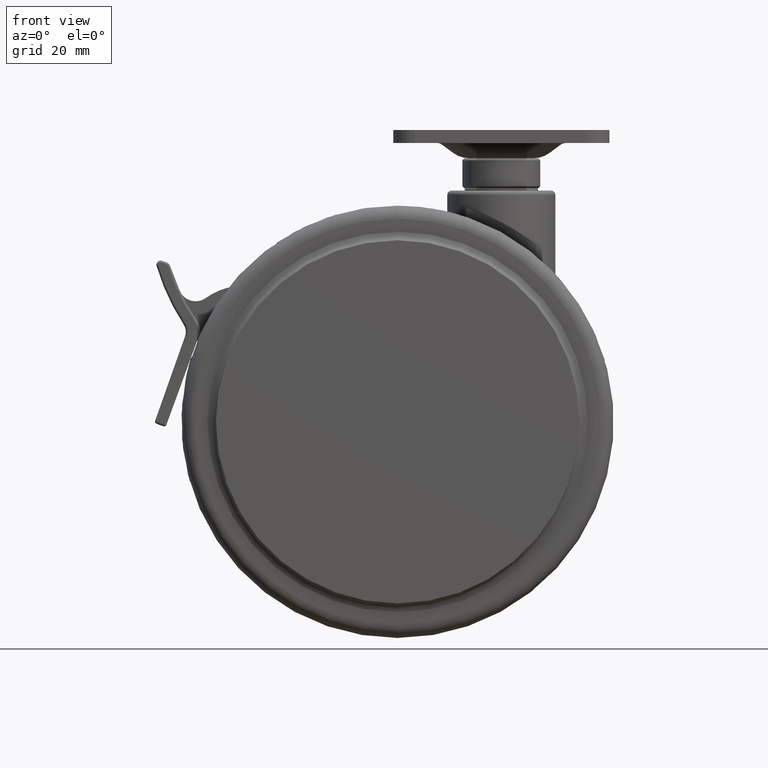
[diagram: clean part render]
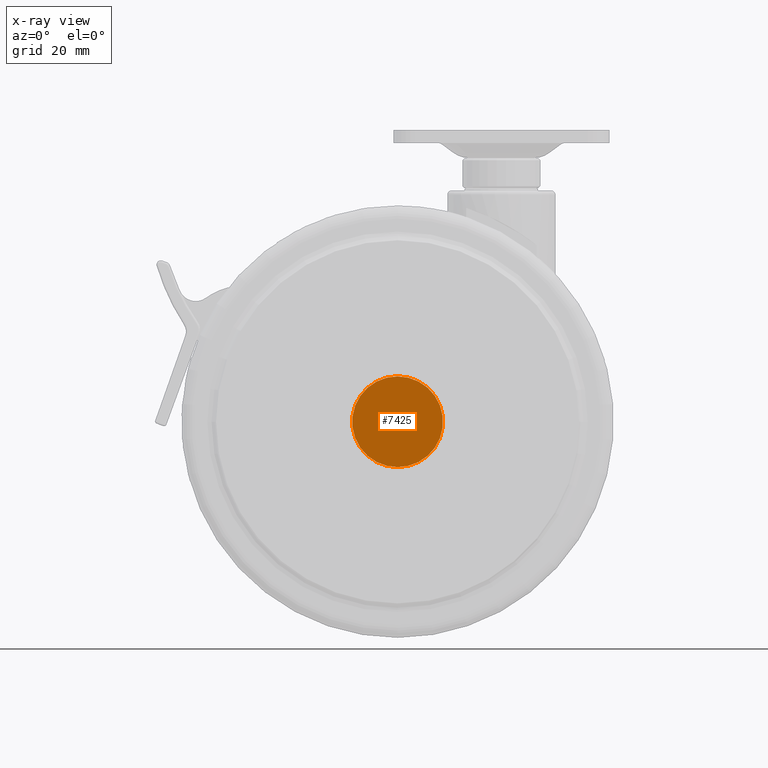
[diagram: x-ray — body ghosted, one internal face saturated and labeled with its STEP entity id]
A machine part, front view, then the same camera in x-ray: the body is ghosted and one INTERNAL B-rep face — a face not visible from any outside direction — is saturated and labeled: STEP entity #7425.
In plain terms, the highlighted planar face has unit normal (0, -1, 0).
Its self-contained STEP definition (entity closure, byte-faithful):
#175 = VERTEX_POINT ( 'NONE', #2384 ) ;
#606 = CARTESIAN_POINT ( 'NONE',  ( -24.00000000000000000, -8.000000000000000000, -53.50000000000000000 ) ) ;
#641 = ORIENTED_EDGE ( 'NONE', *, *, #2575, .T. ) ;
#886 = EDGE_CURVE ( 'NONE', #4148, #175, #6968, .T. ) ;
#1619 = AXIS2_PLACEMENT_3D ( 'NONE', #606, #3267, #7234 ) ;
#1908 = CARTESIAN_POINT ( 'NONE',  ( -24.00000000000000000, -8.000000000000000000, -53.50000000000000000 ) ) ;
#2384 = CARTESIAN_POINT ( 'NONE',  ( -24.00000000000000000, -8.000000000000000000, -64.00000000000000000 ) ) ;
#2566 = DIRECTION ( 'NONE',  ( 0.0000000000000000000, -1.000000000000000000, 0.0000000000000000000 ) ) ;
#2570 = CIRCLE ( 'NONE', #4609, 10.50000000000000200 ) ;
#2575 = EDGE_CURVE ( 'NONE', #175, #4148, #2570, .T. ) ;
#2845 = CARTESIAN_POINT ( 'NONE',  ( -24.00000000000000000, -8.000000000000000000, -43.00000000000000000 ) ) ;
#2921 = DIRECTION ( 'NONE',  ( -0.0000000000000000000, 1.000000000000000000, -0.0000000000000000000 ) ) ;
#3267 = DIRECTION ( 'NONE',  ( -0.0000000000000000000, 1.000000000000000000, -0.0000000000000000000 ) ) ;
#3503 = ORIENTED_EDGE ( 'NONE', *, *, #886, .T. ) ;
#4148 = VERTEX_POINT ( 'NONE', #2845 ) ;
#4609 = AXIS2_PLACEMENT_3D ( 'NONE', #6910, #2921, #7567 ) ;
#4658 = AXIS2_PLACEMENT_3D ( 'NONE', #1908, #2566, #7220 ) ;
#5857 = PLANE ( 'NONE',  #4658 ) ;
#6909 = FACE_OUTER_BOUND ( 'NONE', #8014, .T. ) ;
#6910 = CARTESIAN_POINT ( 'NONE',  ( -24.00000000000000000, -8.000000000000000000, -53.50000000000000000 ) ) ;
#6968 = CIRCLE ( 'NONE', #1619, 10.50000000000000200 ) ;
#7220 = DIRECTION ( 'NONE',  ( 0.0000000000000000000, 0.0000000000000000000, -1.000000000000000000 ) ) ;
#7234 = DIRECTION ( 'NONE',  ( 0.0000000000000000000, 0.0000000000000000000, -1.000000000000000000 ) ) ;
#7425 = ADVANCED_FACE ( 'NONE', ( #6909 ), #5857, .F. ) ;
#7567 = DIRECTION ( 'NONE',  ( 0.0000000000000000000, 0.0000000000000000000, -1.000000000000000000 ) ) ;
#8014 = EDGE_LOOP ( 'NONE', ( #641, #3503 ) ) ;